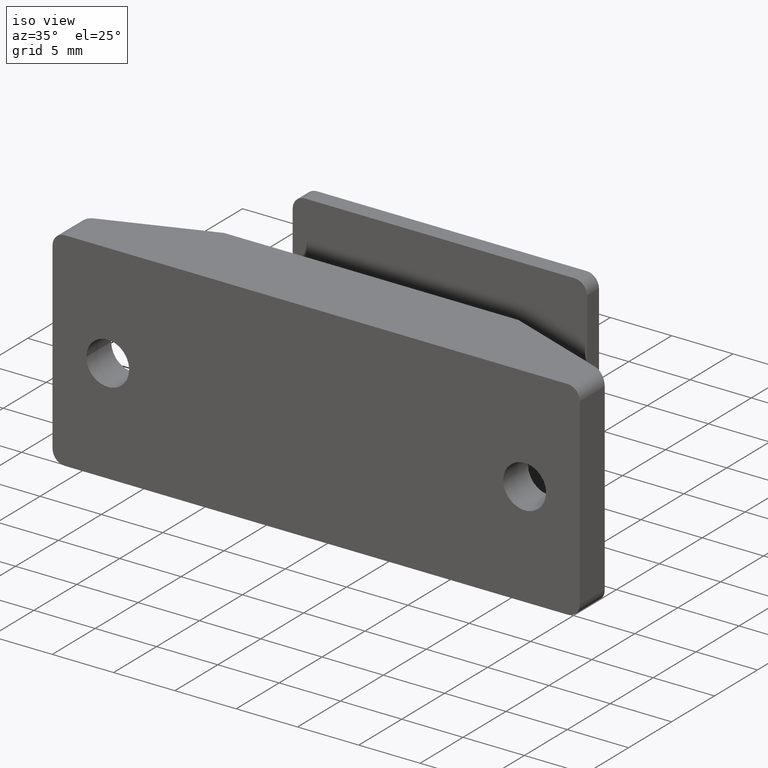
[diagram: clean part render]
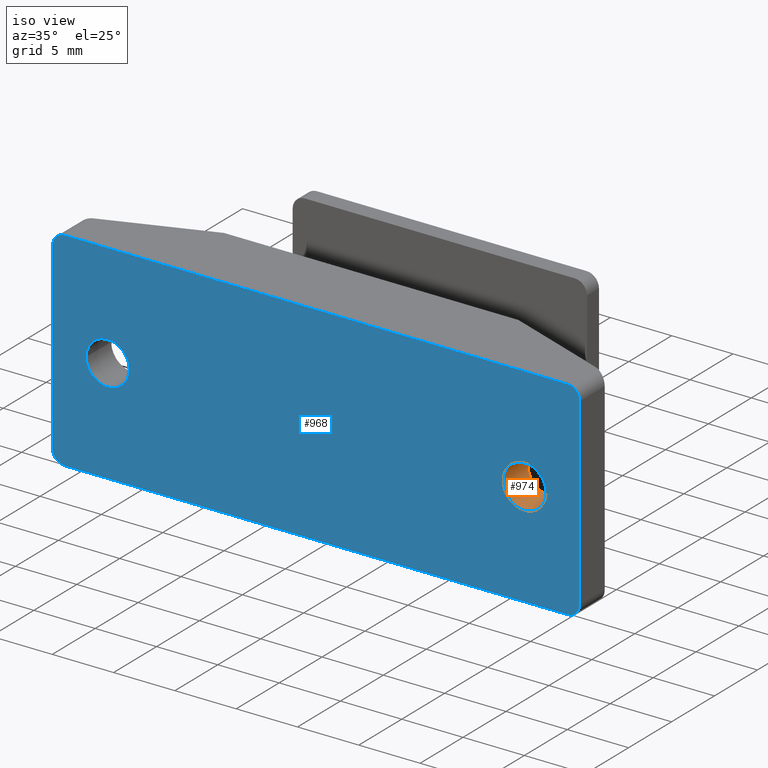
[diagram: same view with the hole feature highlighted: cylindrical wall and planar end face, labeled with their STEP entity ids]
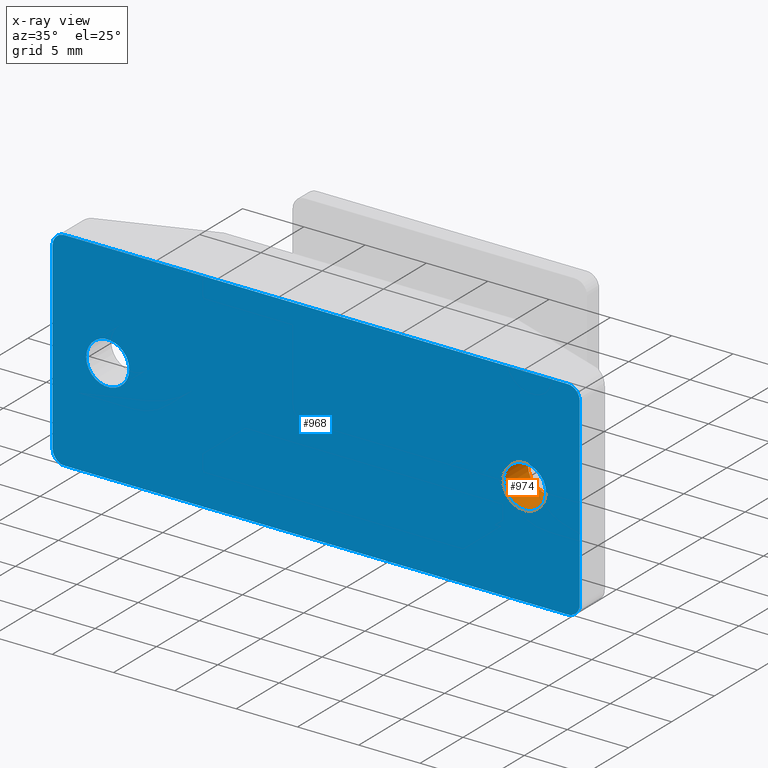
[diagram: x-ray of the same camera — body ghosted, the hole faces saturated]
A machine part, iso view. The highlighted faces form one hole feature of diameter 3.5 mm: the cylindrical wall (entity #974, orange) and its adjacent planar end face (entity #968, blue) — they share a circular edge in the B-rep.
The next image is the same camera in x-ray (body ghosted, the hole faces saturated) — the bore reads through the body.
Wall:
#45=FACE_BOUND('',#170,.T.);
#108=FACE_OUTER_BOUND('',#169,.T.);
#169=EDGE_LOOP('',(#728));
#170=EDGE_LOOP('',(#729));
#447=CIRCLE('',#1038,1.75);
#449=CIRCLE('',#1049,1.75);
#480=VERTEX_POINT('',#1449);
#489=VERTEX_POINT('',#1477);
#572=EDGE_CURVE('',#480,#480,#447,.T.);
#585=EDGE_CURVE('',#489,#489,#449,.T.);
#728=ORIENTED_EDGE('',*,*,#572,.F.);
#729=ORIENTED_EDGE('',*,*,#585,.F.);
#957=CYLINDRICAL_SURFACE('',#1048,1.75);
#974=ADVANCED_FACE('',(#108,#45),#957,.F.);
#1038=AXIS2_PLACEMENT_3D('',#1450,#1153,#1154);
#1048=AXIS2_PLACEMENT_3D('',#1476,#1181,#1182);
#1049=AXIS2_PLACEMENT_3D('',#1478,#1183,#1184);
#1153=DIRECTION('center_axis',(0.,0.,1.));
#1154=DIRECTION('ref_axis',(-1.,0.,0.));
#1181=DIRECTION('center_axis',(0.,0.,-1.));
#1182=DIRECTION('ref_axis',(-1.,0.,0.));
#1183=DIRECTION('center_axis',(0.,0.,-1.));
#1184=DIRECTION('ref_axis',(-1.,0.,0.));
#1449=CARTESIAN_POINT('',(18.75,4.91868946007076E-16,-6.4));
#1450=CARTESIAN_POINT('Origin',(17.,2.77555756156289E-16,-6.4));
#1476=CARTESIAN_POINT('Origin',(17.,2.77555756156289E-16,-3.5));
#1477=CARTESIAN_POINT('',(18.75,4.91868946007076E-16,-3.5));
#1478=CARTESIAN_POINT('Origin',(17.,2.77555756156289E-16,-3.5));
End face:
#42=FACE_BOUND('',#161,.T.);
#43=FACE_BOUND('',#162,.T.);
#59=PLANE('',#1033);
#102=FACE_OUTER_BOUND('',#160,.T.);
#160=EDGE_LOOP('',(#698,#699,#700,#701,#702,#703,#704,#705));
#161=EDGE_LOOP('',(#706));
#162=EDGE_LOOP('',(#707));
#240=LINE('',#1427,#342);
#245=LINE('',#1437,#347);
#246=LINE('',#1441,#348);
#247=LINE('',#1445,#349);
#342=VECTOR('',#1135,41.);
#347=VECTOR('',#1142,15.);
#348=VECTOR('',#1145,41.);
#349=VECTOR('',#1148,15.);
#442=CIRCLE('',#1030,1.);
#443=CIRCLE('',#1034,1.);
#444=CIRCLE('',#1035,1.);
#445=CIRCLE('',#1036,1.);
#446=CIRCLE('',#1037,1.75);
#447=CIRCLE('',#1038,1.75);
#466=VERTEX_POINT('',#1417);
#467=VERTEX_POINT('',#1418);
#470=VERTEX_POINT('',#1426);
#474=VERTEX_POINT('',#1436);
#475=VERTEX_POINT('',#1438);
#476=VERTEX_POINT('',#1440);
#477=VERTEX_POINT('',#1442);
#478=VERTEX_POINT('',#1444);
#479=VERTEX_POINT('',#1447);
#480=VERTEX_POINT('',#1449);
#556=EDGE_CURVE('',#466,#467,#442,.T.);
#560=EDGE_CURVE('',#467,#470,#240,.T.);
#565=EDGE_CURVE('',#474,#466,#245,.T.);
#566=EDGE_CURVE('',#475,#474,#443,.T.);
#567=EDGE_CURVE('',#476,#475,#246,.T.);
#568=EDGE_CURVE('',#477,#476,#444,.T.);
#569=EDGE_CURVE('',#478,#477,#247,.T.);
#570=EDGE_CURVE('',#470,#478,#445,.T.);
#571=EDGE_CURVE('',#479,#479,#446,.T.);
#572=EDGE_CURVE('',#480,#480,#447,.T.);
#698=ORIENTED_EDGE('',*,*,#556,.F.);
#699=ORIENTED_EDGE('',*,*,#565,.F.);
#700=ORIENTED_EDGE('',*,*,#566,.F.);
#701=ORIENTED_EDGE('',*,*,#567,.F.);
#702=ORIENTED_EDGE('',*,*,#568,.F.);
#703=ORIENTED_EDGE('',*,*,#569,.F.);
#704=ORIENTED_EDGE('',*,*,#570,.F.);
#705=ORIENTED_EDGE('',*,*,#560,.F.);
#706=ORIENTED_EDGE('',*,*,#571,.T.);
#707=ORIENTED_EDGE('',*,*,#572,.T.);
#968=ADVANCED_FACE('',(#102,#42,#43),#59,.T.);
#1030=AXIS2_PLACEMENT_3D('',#1419,#1127,#1128);
#1033=AXIS2_PLACEMENT_3D('',#1435,#1140,#1141);
#1034=AXIS2_PLACEMENT_3D('',#1439,#1143,#1144);
#1035=AXIS2_PLACEMENT_3D('',#1443,#1146,#1147);
#1036=AXIS2_PLACEMENT_3D('',#1446,#1149,#1150);
#1037=AXIS2_PLACEMENT_3D('',#1448,#1151,#1152);
#1038=AXIS2_PLACEMENT_3D('',#1450,#1153,#1154);
#1127=DIRECTION('center_axis',(0.,0.,1.));
#1128=DIRECTION('ref_axis',(-0.707106781186547,-0.707106781186548,0.));
#1135=DIRECTION('',(1.,0.,0.));
#1140=DIRECTION('center_axis',(0.,0.,-1.));
#1141=DIRECTION('ref_axis',(-1.,0.,0.));
#1142=DIRECTION('',(0.,-1.,0.));
#1143=DIRECTION('center_axis',(0.,0.,1.));
#1144=DIRECTION('ref_axis',(-0.707106781186547,0.707106781186548,0.));
#1145=DIRECTION('',(-1.,0.,0.));
#1146=DIRECTION('center_axis',(0.,0.,1.));
#1147=DIRECTION('ref_axis',(0.707106781186547,0.707106781186548,0.));
#1148=DIRECTION('',(0.,1.,0.));
#1149=DIRECTION('center_axis',(0.,0.,1.));
#1150=DIRECTION('ref_axis',(0.707106781186547,-0.707106781186548,0.));
#1151=DIRECTION('center_axis',(0.,0.,1.));
#1152=DIRECTION('ref_axis',(1.,0.,0.));
#1153=DIRECTION('center_axis',(0.,0.,1.));
#1154=DIRECTION('ref_axis',(-1.,0.,0.));
#1417=CARTESIAN_POINT('',(-21.5,-7.5,-6.4));
#1418=CARTESIAN_POINT('',(-20.5,-8.5,-6.4));
#1419=CARTESIAN_POINT('Origin',(-20.5,-7.5,-6.4));
#1426=CARTESIAN_POINT('',(20.5,-8.5,-6.4));
#1427=CARTESIAN_POINT('',(-21.5,-8.5,-6.4));
#1435=CARTESIAN_POINT('Origin',(21.5,0.,-6.4));
#1436=CARTESIAN_POINT('',(-21.5,7.5,-6.4));
#1437=CARTESIAN_POINT('',(-21.5,0.,-6.4));
#1438=CARTESIAN_POINT('',(-20.5,8.5,-6.4));
#1439=CARTESIAN_POINT('Origin',(-20.5,7.5,-6.4));
#1440=CARTESIAN_POINT('',(20.5,8.5,-6.4));
#1441=CARTESIAN_POINT('',(-21.5,8.5,-6.4));
#1442=CARTESIAN_POINT('',(21.5,7.5,-6.4));
#1443=CARTESIAN_POINT('Origin',(20.5,7.5,-6.4));
#1444=CARTESIAN_POINT('',(21.5,-7.5,-6.4));
#1445=CARTESIAN_POINT('',(21.5,0.,-6.4));
#1446=CARTESIAN_POINT('Origin',(20.5,-7.5,-6.4));
#1447=CARTESIAN_POINT('',(-18.75,6.32425663055023E-17,-6.4));
#1448=CARTESIAN_POINT('Origin',(-17.,2.77555756156289E-16,-6.4));
#1449=CARTESIAN_POINT('',(18.75,4.91868946007076E-16,-6.4));
#1450=CARTESIAN_POINT('Origin',(17.,2.77555756156289E-16,-6.4));